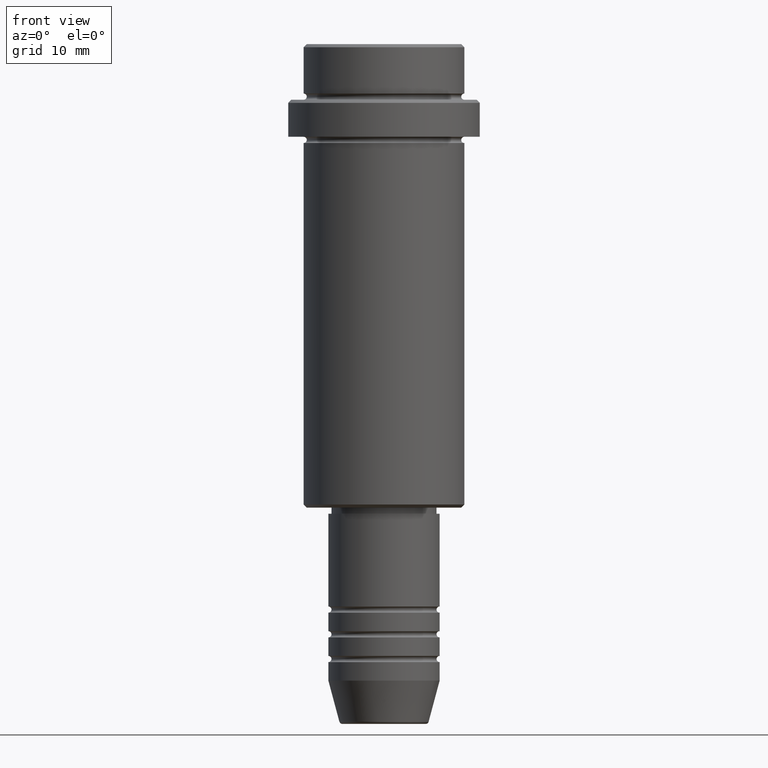
[diagram: clean part render]
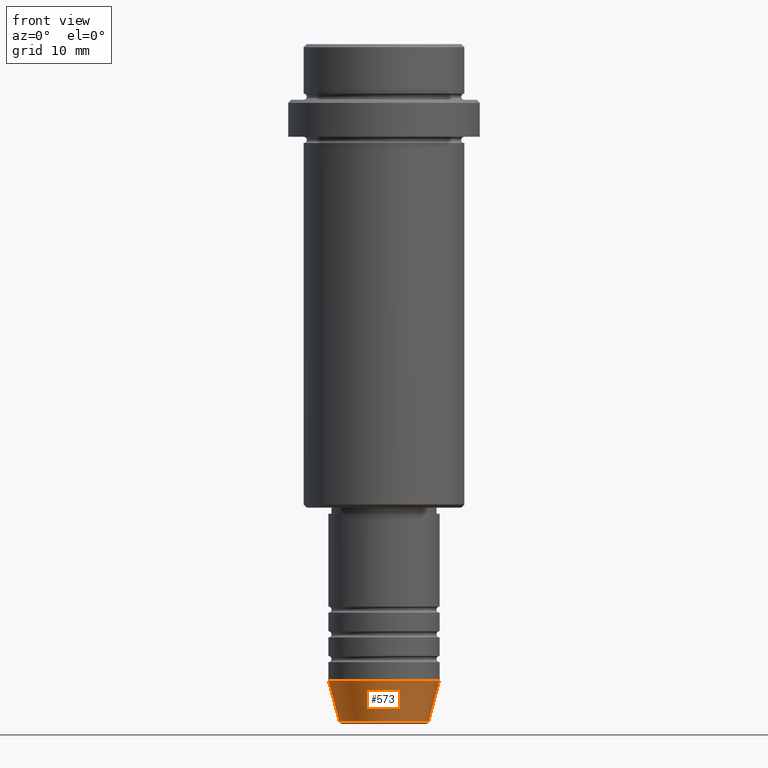
[diagram: same view with one face highlighted and labeled with its STEP entity id]
A machine part, front view. The second image highlights one B-rep face of the part: STEP entity #573.
In plain terms, the highlighted conical surface has half-angle 15 deg.
Its self-contained STEP definition (entity closure, byte-faithful):
#37 = AXIS2_PLACEMENT_3D ( 'NONE', #982, #1304, #440 ) ;
#143 = VERTEX_POINT ( 'NONE', #317 ) ;
#168 = EDGE_CURVE ( 'NONE', #185, #833, #886, .T. ) ;
#169 = CARTESIAN_POINT ( 'NONE',  ( -9.000000000000000000, 1.102182119232617714E-15, -103.0000000000000142 ) ) ;
#185 = VERTEX_POINT ( 'NONE', #655 ) ;
#188 = CARTESIAN_POINT ( 'NONE',  ( 9.000000000000000000, 0.000000000000000000, -103.0000000000000142 ) ) ;
#233 = EDGE_CURVE ( 'NONE', #143, #696, #750, .T. ) ;
#240 = DIRECTION ( 'NONE',  ( 0.2588190451025213501, 0.000000000000000000, 0.9659258262890680902 ) ) ;
#282 = ORIENTED_EDGE ( 'NONE', *, *, #168, .F. ) ;
#306 = EDGE_CURVE ( 'NONE', #696, #833, #570, .T. ) ;
#317 = CARTESIAN_POINT ( 'NONE',  ( -7.223655072137189492, 9.934123627281765110E-16, -109.6294095225512706 ) ) ;
#345 = DIRECTION ( 'NONE',  ( -0.000000000000000000, -0.000000000000000000, 1.000000000000000000 ) ) ;
#430 = EDGE_CURVE ( 'NONE', #143, #185, #625, .T. ) ;
#433 = AXIS2_PLACEMENT_3D ( 'NONE', #777, #1210, #541 ) ;
#440 = DIRECTION ( 'NONE',  ( 1.000000000000000000, 0.000000000000000000, 0.000000000000000000 ) ) ;
#452 = CONICAL_SURFACE ( 'NONE', #37, 9.000000000000000000, 0.2617993877991500740 ) ;
#460 = CARTESIAN_POINT ( 'NONE',  ( 9.000000000000000000, 0.000000000000000000, -103.0000000000000142 ) ) ;
#509 = ORIENTED_EDGE ( 'NONE', *, *, #233, .T. ) ;
#526 = AXIS2_PLACEMENT_3D ( 'NONE', #1144, #345, #1235 ) ;
#541 = DIRECTION ( 'NONE',  ( 1.000000000000000000, 0.000000000000000000, 0.000000000000000000 ) ) ;
#570 = LINE ( 'NONE', #460, #748 ) ;
#573 = ADVANCED_FACE ( 'NONE', ( #754 ), #452, .T. ) ;
#603 = DIRECTION ( 'NONE',  ( -0.2588190451025213501, 3.169619151431772337E-17, 0.9659258262890680902 ) ) ;
#625 = LINE ( 'NONE', #169, #1317 ) ;
#655 = CARTESIAN_POINT ( 'NONE',  ( -9.000000000000000000, 1.102182119232617714E-15, -103.0000000000000142 ) ) ;
#696 = VERTEX_POINT ( 'NONE', #1014 ) ;
#748 = VECTOR ( 'NONE', #240, 1000.000000000000000 ) ;
#750 = CIRCLE ( 'NONE', #526, 7.223655072137188604 ) ;
#754 = FACE_OUTER_BOUND ( 'NONE', #1399, .T. ) ;
#777 = CARTESIAN_POINT ( 'NONE',  ( 0.000000000000000000, 0.000000000000000000, -103.0000000000000142 ) ) ;
#833 = VERTEX_POINT ( 'NONE', #188 ) ;
#886 = CIRCLE ( 'NONE', #433, 9.000000000000000000 ) ;
#982 = CARTESIAN_POINT ( 'NONE',  ( 0.000000000000000000, 0.000000000000000000, -103.0000000000000142 ) ) ;
#1014 = CARTESIAN_POINT ( 'NONE',  ( 7.223655072137188604, 0.000000000000000000, -109.6294095225512706 ) ) ;
#1135 = ORIENTED_EDGE ( 'NONE', *, *, #430, .F. ) ;
#1144 = CARTESIAN_POINT ( 'NONE',  ( 0.000000000000000000, 0.000000000000000000, -109.6294095225512706 ) ) ;
#1210 = DIRECTION ( 'NONE',  ( -0.000000000000000000, -0.000000000000000000, 1.000000000000000000 ) ) ;
#1235 = DIRECTION ( 'NONE',  ( 1.000000000000000000, 0.000000000000000000, 0.000000000000000000 ) ) ;
#1304 = DIRECTION ( 'NONE',  ( -0.000000000000000000, -0.000000000000000000, 1.000000000000000000 ) ) ;
#1317 = VECTOR ( 'NONE', #603, 1000.000000000000000 ) ;
#1344 = ORIENTED_EDGE ( 'NONE', *, *, #306, .T. ) ;
#1399 = EDGE_LOOP ( 'NONE', ( #1135, #509, #1344, #282 ) ) ;